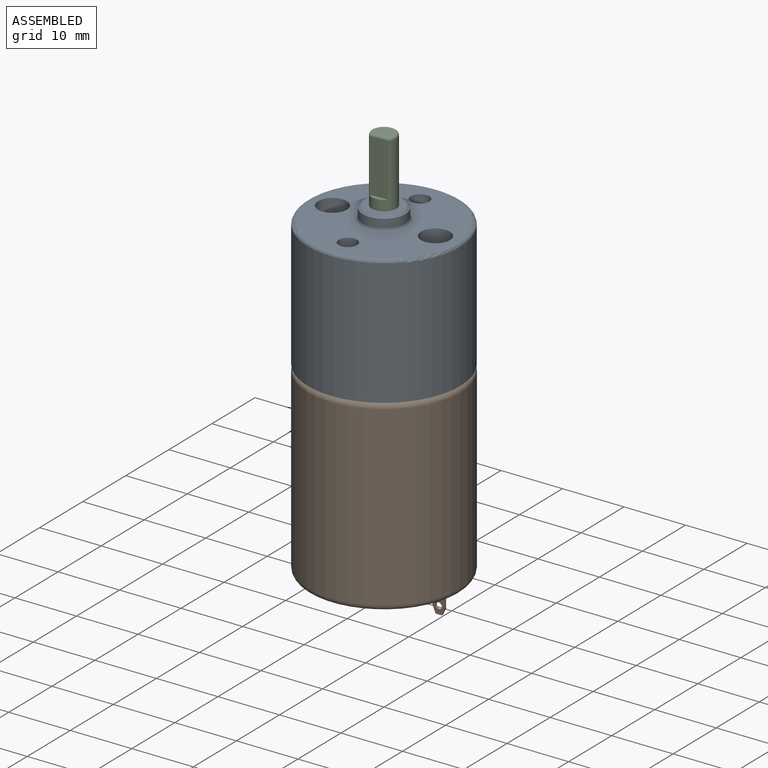
[diagram: assembled view]
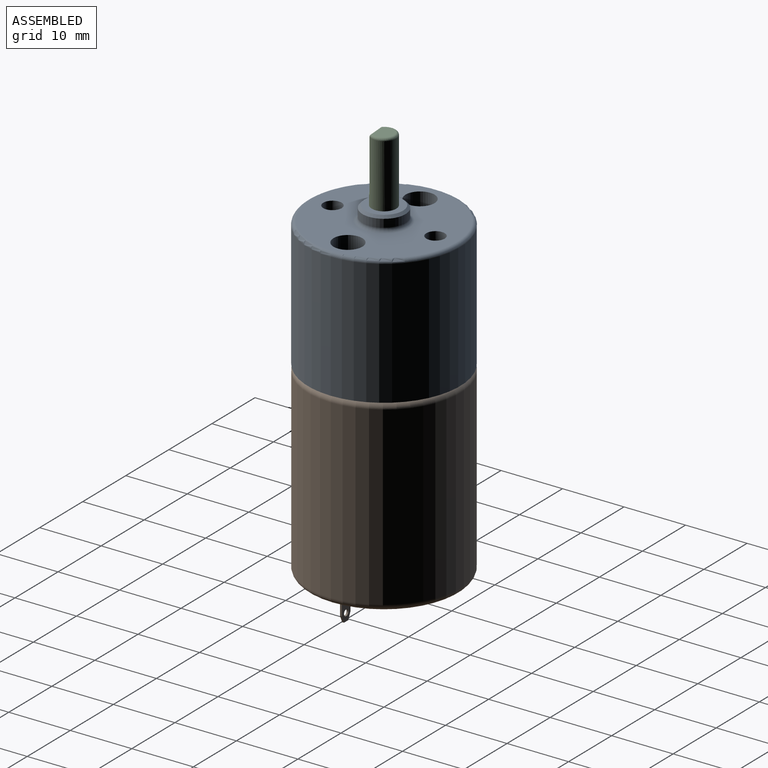
[diagram: assembled view, second angle]
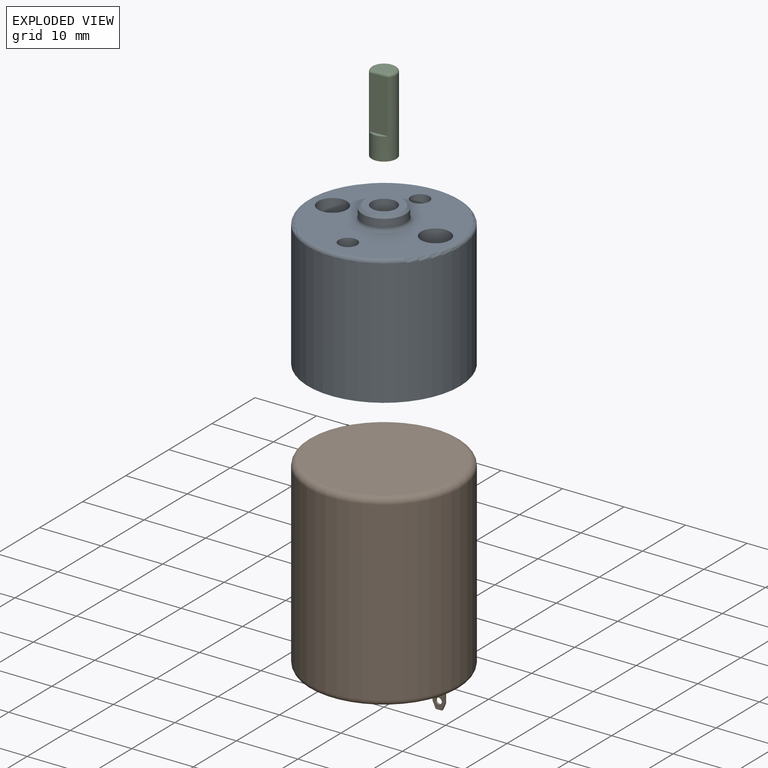
[diagram: exploded view]
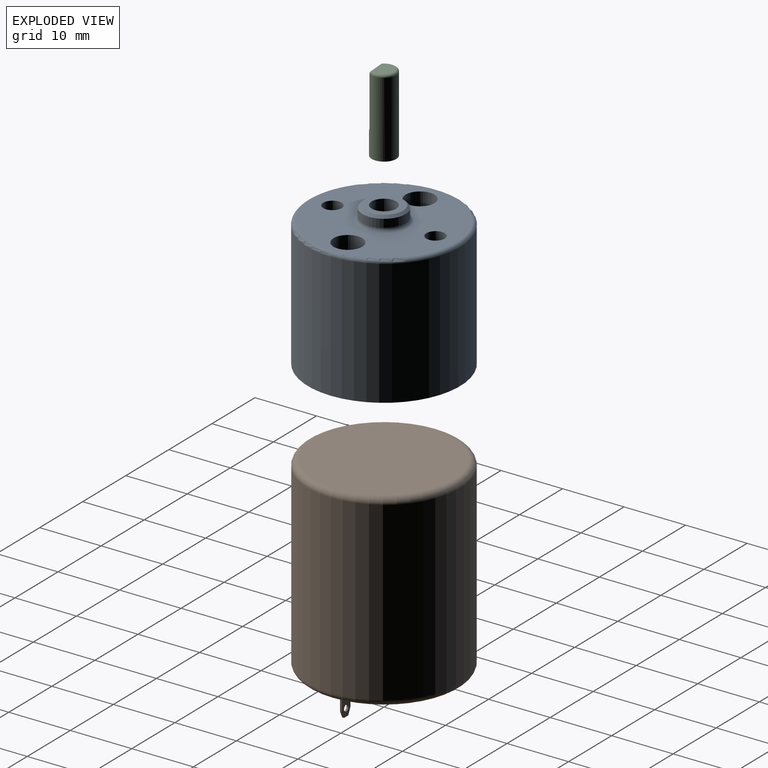
[diagram: exploded view, second angle]
ASSEMBLY  parts=3 mates=2
PART A: 22 faces, bbox 26.8x26.8x23.3 mm
  f0: plane 23.55x23.55mm, normal (0,0,1), area 333.9mm2, adj f7,f8,f10,f12,f14,f18
  f1: cylinder r=12.38mm len=24.75mm, axis (0,0,-1), area 1586.2mm2, adj f2,f8
  f2: plane 24.75x24.75mm, normal (0,0,-1), area 481.1mm2, adj f1
  f3: cylinder r=3.5mm len=7mm, axis (0,0,-1), area 28.6mm2, adj f7,f9
  f4: plane 6.2x6.2mm, normal (0,0,1), area 17.6mm2, adj f5,f9
  f5: cylinder r=2mm len=4mm, axis (0,0,1), area 25.1mm2, adj f4,f6
  f6: plane 4x4mm, normal (0,0,1), area 12.6mm2, adj f5
  f7: torus R=4.1mm, axis (0,0,1), area 22mm2, adj f0,f3
  f8: torus R=11.78mm, axis (0,0,1), area 72mm2, adj f0,f1
  f9: cone r=3.1mm half-angle=45deg, axis (0,0,-1), area 11.7mm2, adj f3,f4
  f10: cylinder r=1.5mm len=3mm, axis (0,0,1), area 28.3mm2, adj f0,f11
  f11: plane 3x3mm, normal (0,0,1), area 7.1mm2, adj f10
  f12: cylinder r=1.5mm len=3mm, axis (0,0,1), area 28.3mm2, adj f0,f13
  f13: plane 3x3mm, normal (0,0,1), area 7.1mm2, adj f12
  f14: cylinder r=2.35mm len=4.7mm, axis (0,0,1), area 36.9mm2, adj f0,f15
  f15: plane 4.7x4.7mm, normal (0,0,1), area 9.6mm2, adj f14,f16
  f16: cylinder r=1.57mm len=3.15mm, axis (0,0,1), area 29.7mm2, adj f15,f17
  f17: plane 3.15x3.15mm, normal (0,0,1), area 7.8mm2, adj f16
  f18: cylinder r=2.35mm len=4.7mm, axis (0,0,1), area 36.9mm2, adj f0,f19
  f19: plane 4.7x4.7mm, normal (0,0,1), area 9.6mm2, adj f18,f20
  f20: cylinder r=1.57mm len=3.15mm, axis (0,0,1), area 29.7mm2, adj f19,f21
  f21: plane 3.15x3.15mm, normal (0,0,1), area 7.8mm2, adj f20
PART B: 27 faces, bbox 26.8x26.8x35.3 mm
  f0: plane 22.75x22.75mm, normal (0,0,-1), area 373.1mm2, adj f5,f6,f11,f12,f13,f14,f18,f19
  f1: cylinder r=12.38mm len=28.7mm, axis (0,0,1), area 2231.6mm2, adj f3,f4
  f2: plane 22.75x22.75mm, normal (0,0,1), area 406.5mm2, adj f3
  f3: torus R=11.38mm, axis (0,0,-1), area 118.5mm2, adj f1,f2
  f4: torus R=11.38mm, axis (0,0,-1), area 118.5mm2, adj f1,f5
  f5: cylinder r=11.38mm len=22.75mm, axis (0,0,-1), area 50mm2, adj f0,f4
  f6: cylinder r=3.2mm len=6.4mm, axis (0,0,1), area 32.2mm2, adj f0,f10
  f7: plane 5.4x5.4mm, normal (0,0,-1), area 19.8mm2, adj f8,f10
  f8: cylinder r=1mm len=3.2mm, axis (0,0,1), area 20.1mm2, adj f7,f9
  f9: plane 2x2mm, normal (0,0,-1), area 3.1mm2, adj f8
  f10: torus R=2.7mm, axis (0,0,-1), area 14.9mm2, adj f6,f7
  f11: plane 4.4x2mm, normal (0,1,0), area 7.5mm2, adj f0,f12,f14,f15,f16,f17,f26
  f12: plane 3.3x0.3mm, normal (1,0,0), area 1mm2, adj f0,f11,f13,f16
  f13: plane 4.4x2mm, normal (0,-1,0), area 7.5mm2, adj f0,f12,f14,f15,f16,f17,f26
  f14: plane 3.3x0.3mm, normal (-1,0,0), area 1mm2, adj f0,f11,f13,f17
  f15: plane 1x0.3mm, normal (0,0,-1), area 0.3mm2, adj f11,f13,f16,f17
  f16: plane 1.1x0.5mm, normal (0.91,0,-0.41), area 0.4mm2, adj f11,f12,f13,f15
  f17: plane 1.1x0.5mm, normal (-0.91,0,-0.41), area 0.4mm2, adj f11,f13,f14,f15
  f18: plane 4.4x2mm, normal (0,1,0), area 7.5mm2, adj f0,f19,f21,f22,f23,f24,f25
  f19: plane 3.3x0.3mm, normal (1,0,0), area 1mm2, adj f0,f18,f20,f24
  f20: plane 4.4x2mm, normal (0,-1,0), area 7.5mm2, adj f0,f19,f21,f22,f23,f24,f25
  f21: plane 3.3x0.3mm, normal (-1,0,0), area 1mm2, adj f0,f18,f20,f23
  f22: plane 1x0.3mm, normal (0,0,-1), area 0.3mm2, adj f18,f20,f23,f24
  f23: plane 1.1x0.5mm, normal (-0.91,0,-0.41), area 0.4mm2, adj f18,f20,f21,f22
  f24: plane 1.1x0.5mm, normal (0.91,0,-0.41), area 0.4mm2, adj f18,f19,f20,f22
  f25: cylinder r=0.5mm len=1mm, axis (0,-1,0), area 0.9mm2, adj f18,f20
  f26: cylinder r=0.5mm len=1mm, axis (0,-1,0), area 0.9mm2, adj f11,f13
PART C: 7 faces, bbox 4.3x4.2x12.7 mm
  f0: cylinder r=2mm len=12.3mm, axis (0,0,-1), area 126.6mm2, adj f2,f3,f4,f5
  f1: plane 3.2x2.58mm, normal (0,0,1), area 6.9mm2, adj f5,f6
  f2: plane 4x4mm, normal (0,0,-1), area 12.6mm2, adj f0
  f3: plane 8.6x2.9mm, normal (0,-1,0), area 25mm2, adj f0,f4,f6
  f4: plane 2.9x0.63mm, normal (0,0,1), area 1.3mm2, adj f0,f3
  f5: torus R=1.6mm, axis (0,0,1), area 5.4mm2, adj f0,f1,f6
  f6: cylinder r=0.4mm len=2.9mm, axis (1,0,0), area 1.7mm2, adj f1,f3,f5
PLACE A at identity fixed
PLACE B at identity
PLACE C rot(axis=(0,0,1),4.1deg) t=(0,0,0)mm
MATE revolute C.f0 <-> A.f5  axis (0,0,-1) through (0,0,21.3)mm
MATE fastened A.f1 <-> B.f1  axis (0,0,-1) through (0,0,0)mm
